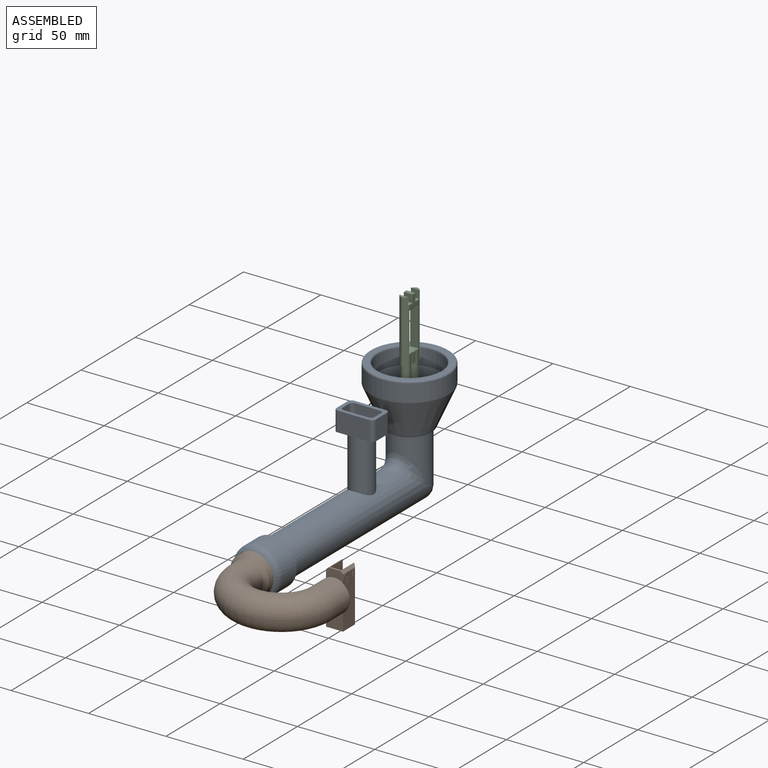
[diagram: assembled view]
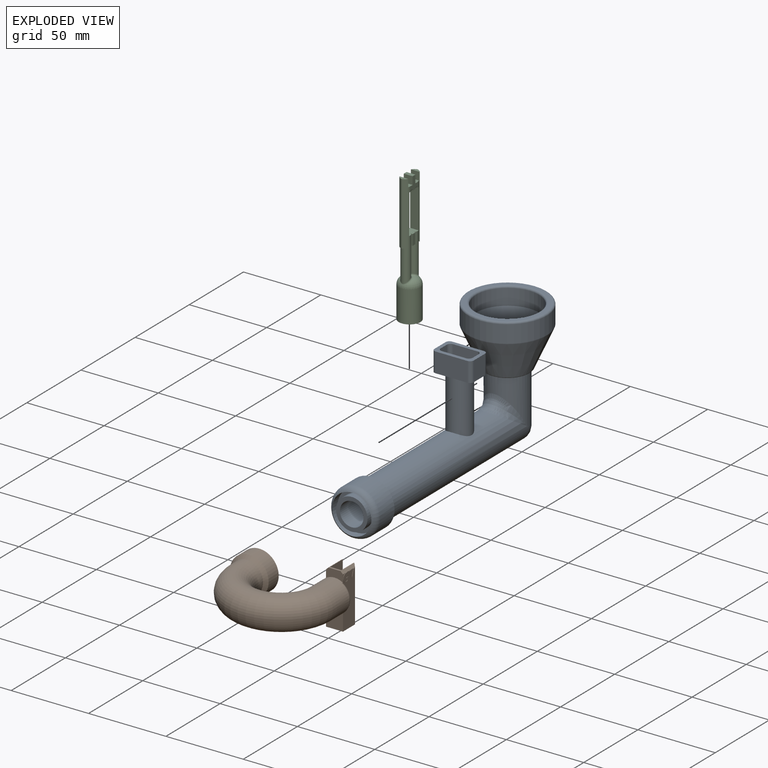
[diagram: exploded view]
GUIDED TOUR — MATED ASSEMBLY (Onshape document 294cb8a4e7f93ac775abc34d, AutoMate assembly 294cb8a4e7f93ac775abc34d_49859cf4d4e30ea3f9144161_02665d1db460f2ab4e674225_default)

This assembly has 3 components, labeled P0..P2 below (a component is one placed occurrence of a part; the same part can appear more than once), held together by 2 mates. A mate is a constraint between two components; its type names the relative motion it leaves free:
  CYLINDRICAL — leaves both rotation about and translation along the listed axis free,
  PIN_SLOT — leaves rotation about the listed axis plus translation along a slot free.
Axis/direction vectors are unit vectors and 'through' points are millimeter coordinates, both in the assembly's world frame.

MATES
  1. CYLINDRICAL "Cylindrical 1": P0 <-> P1, axis (0.000, -1.000, 0.000) through (-49.79, 107.34, 153.66) mm
  2. PIN_SLOT "Pin slot 1": P0 <-> P2, axis (0.000, 0.000, -1.000) through (-49.79, 246.02, 188.46) mm

ASSEMBLY ORDER
  1. P1 — the base component [order verified]
  2. P0 [order verified]
  3. P2 [order verified]
(P0 verified with a relaxed clearance tolerance: the source model stores slight part interference there.)
Order-tag legend:
  [order verified] — this step's position reverses a verified removal order: the component was checked to insert without passing through the ones already placed.

Of the 3 components, 1 carries the full construction recipe — the FeatureScript program that regenerates the part's solid from scratch; the rest are supplied as boundary geometry only.
Each toured component is shown spotlighted twice — in the assembled view, then in the exploded view, where a leader line traces a displaced component back to its assembled socket (saturated green if recipe-attached, orange if geometry-only; every other component desaturated gray) — followed by its recipe or geometry summary and the mates that hold it.
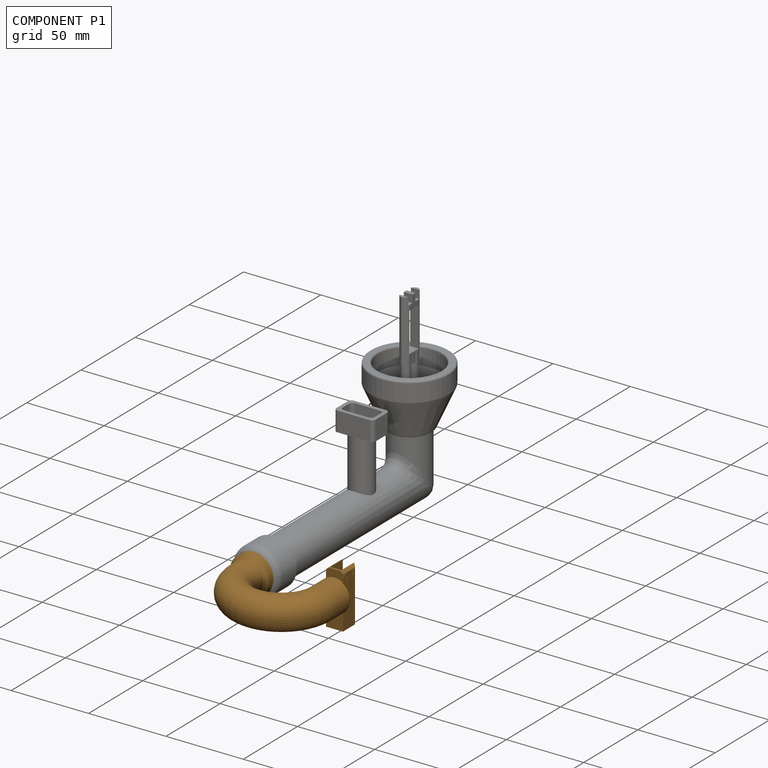
[diagram: component P1 — assembled]
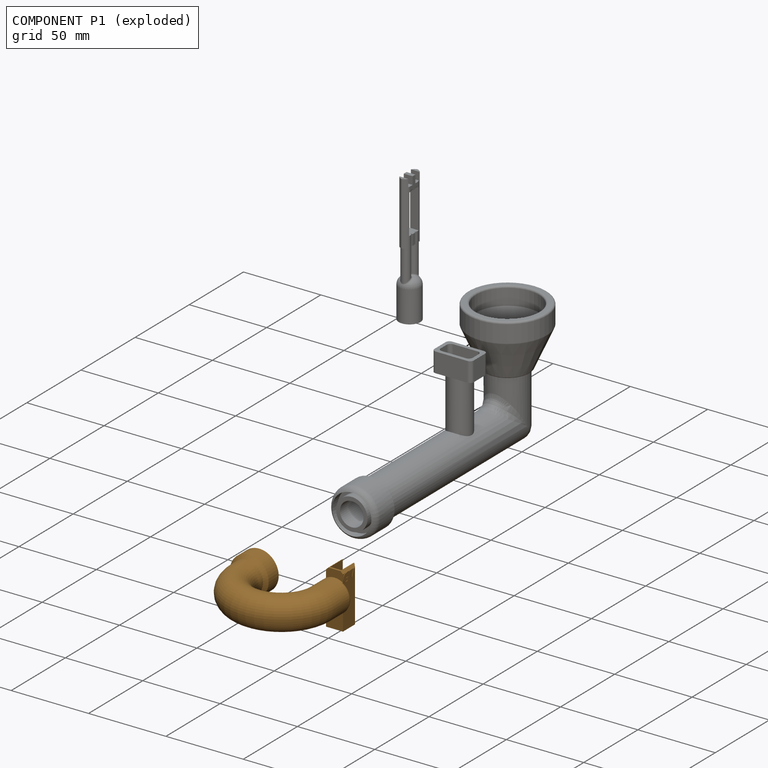
[diagram: component P1 — exploded]
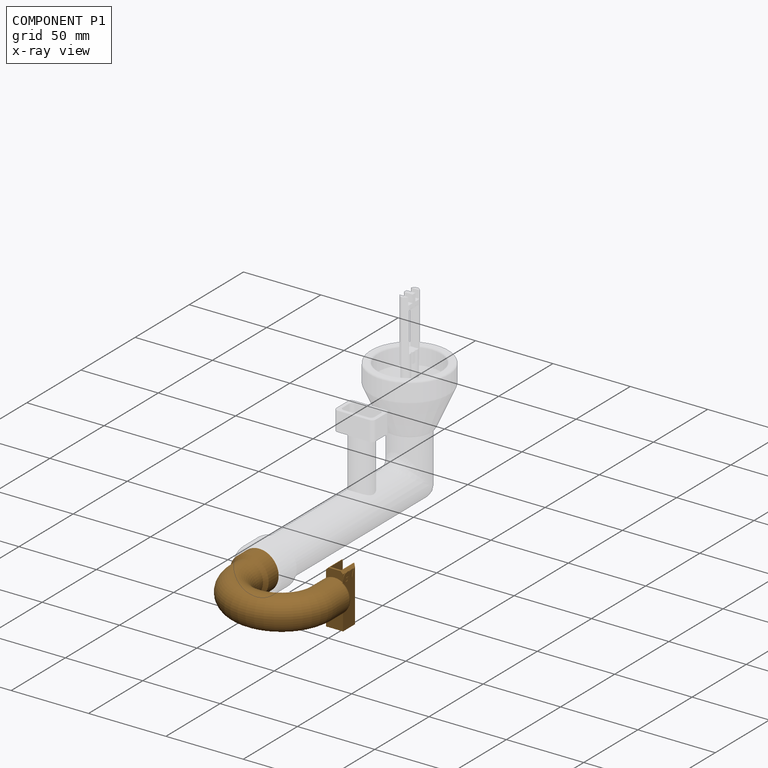
[diagram: component P1 — x-ray view]
COMPONENT P1 — geometry summary (no construction recipe available for this part):
  bounding box: 77.7 x 64.3 x 35.1 mm
  B-rep topology: 1 solid, 126 faces, 640 edges
  volume: 20211 mm^3 (12% of its bounding box)
Held by: CYLINDRICAL mate "Cylindrical 1" to P0.
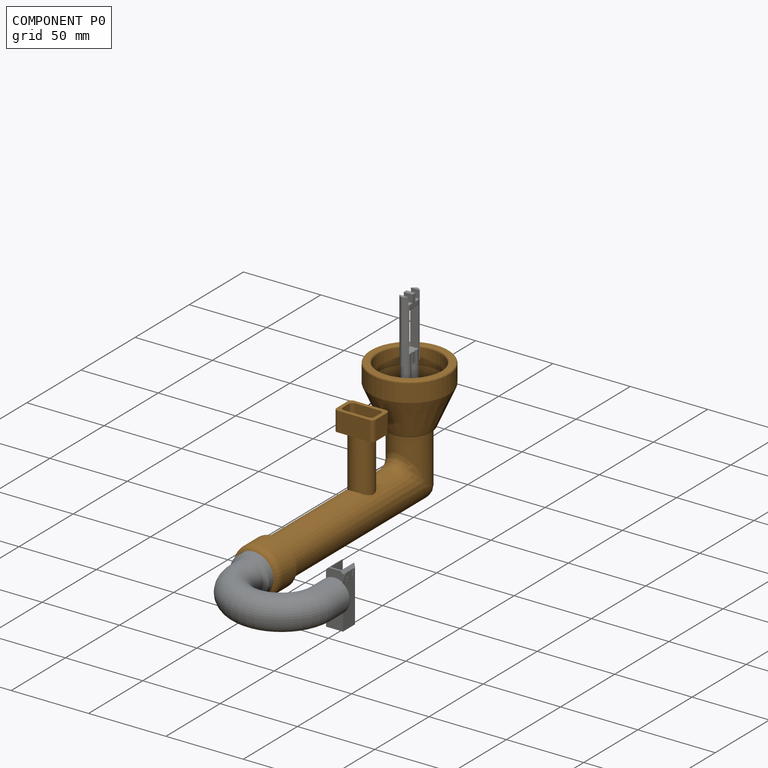
[diagram: component P0 — assembled]
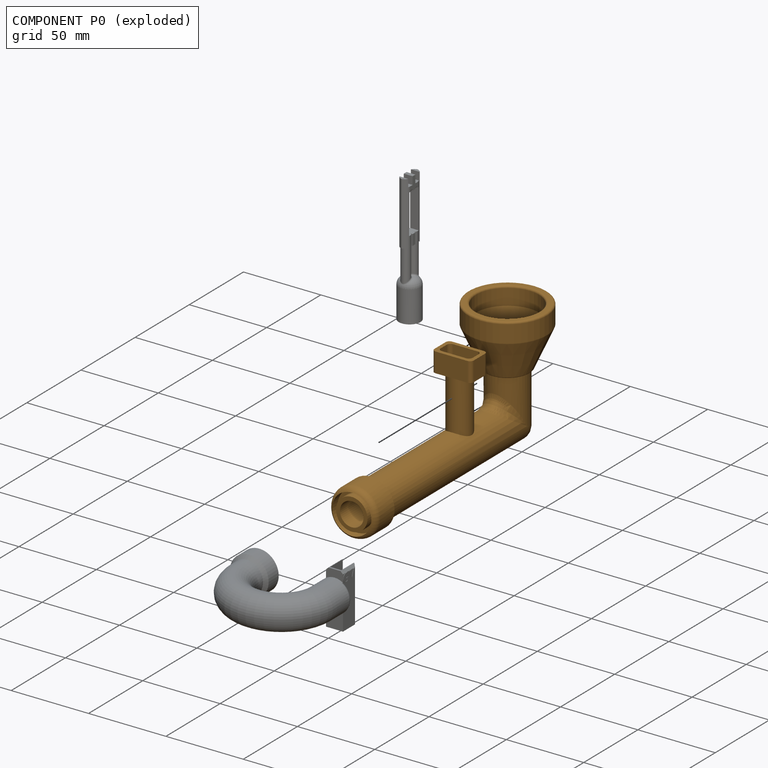
[diagram: component P0 — exploded]
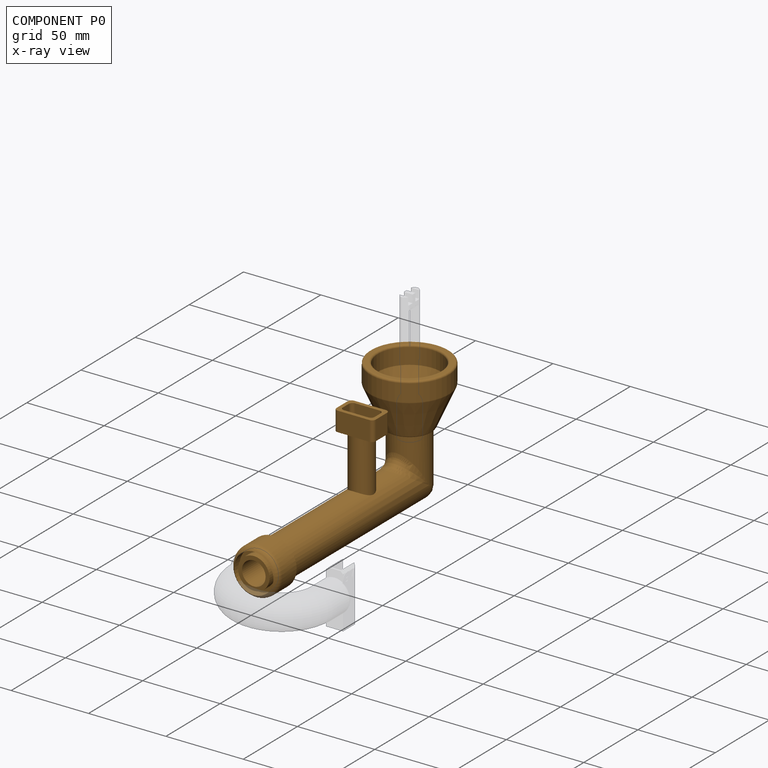
[diagram: component P0 — x-ray view]
COMPONENT P0 — geometry summary (no construction recipe available for this part):
  bounding box: 172.7 x 86.4 x 55.7 mm
  B-rep topology: 1 solid, 59 faces, 276 edges
  volume: 89300 mm^3 (11% of its bounding box)
  symmetry: mirror-symmetric across its x mid-plane
Held by: CYLINDRICAL mate "Cylindrical 1" to P1; PIN_SLOT mate "Pin slot 1" to P2.
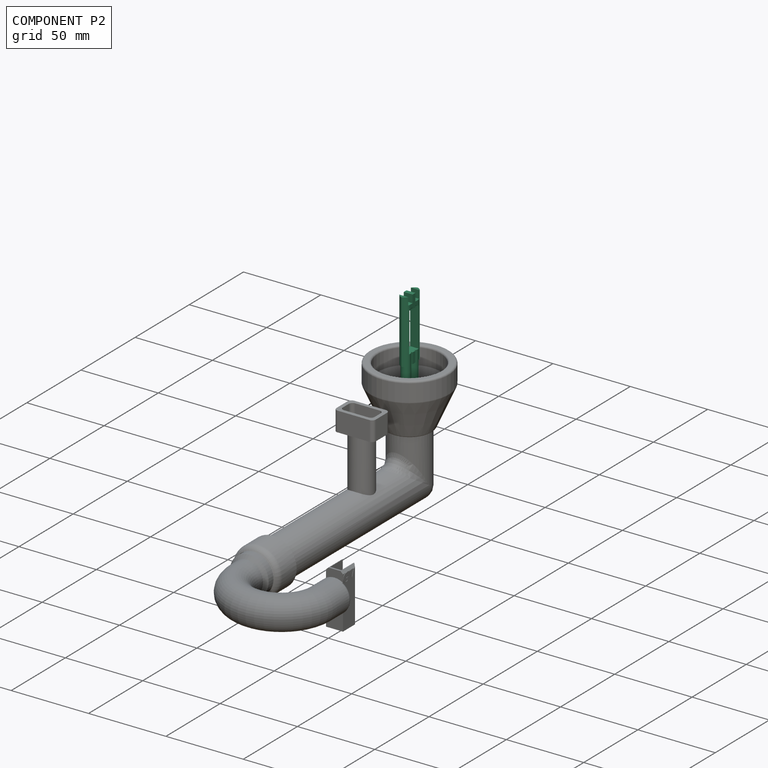
[diagram: component P2 — assembled]
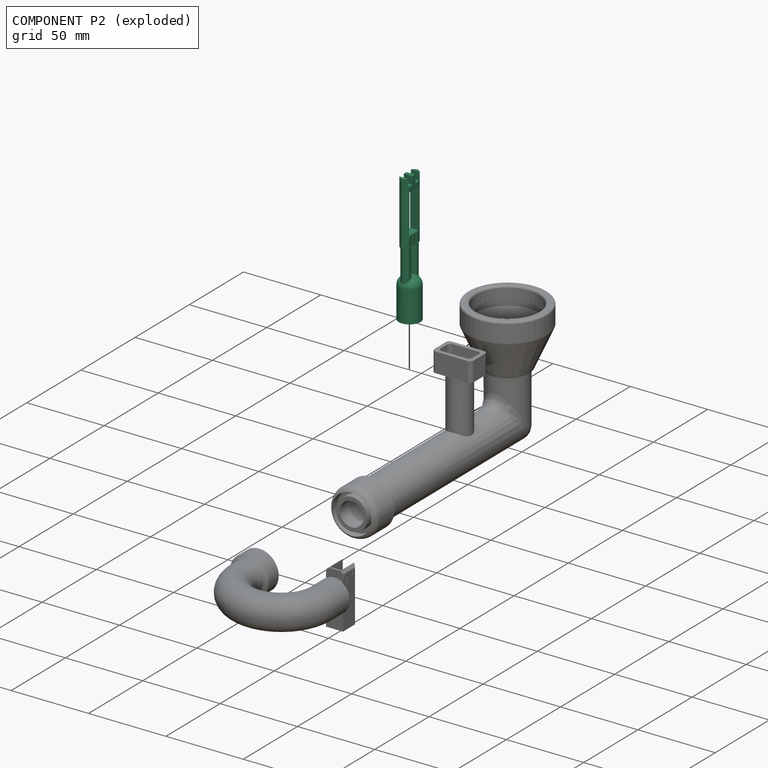
[diagram: component P2 — exploded]
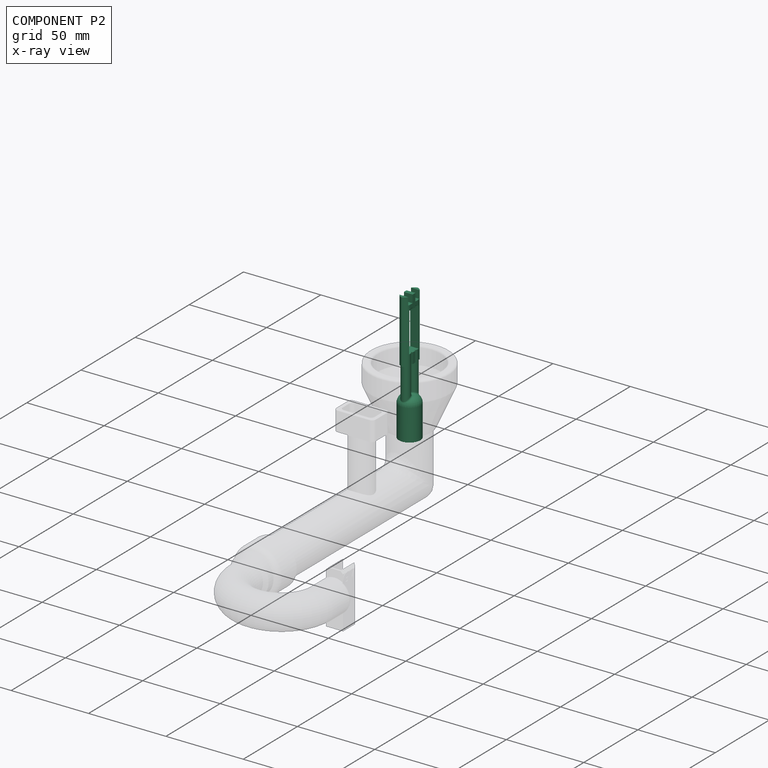
[diagram: component P2 — x-ray view]
COMPONENT P2 — recipe-attached (CADFS 00290997, mesh-verified: the recipe's output STEP matches this component's geometry to below the mesh-comparison resolution (tessellation chordal tolerance ~0.13 mm)).
Held by: PIN_SLOT mate "Pin slot 1" to P0.
Construction recipe (FeatureScript — the CAD program that rebuilds this solid; sketch coordinates are in the units given by the * unit suffixes, e.g. mm):

FeatureScript 1511;
import(path : "onshape/std/geometry.fs", version : "1511.0");
import(path : "onshape/std/common.fs", version : "1511.0");
const mm = millimeter;
const VERTEX = EntityType.VERTEX;
const EDGE = EntityType.EDGE;
const FACE = EntityType.FACE;
const BODY = EntityType.BODY;
function v(x, y){return vector(x, y);}
function OD(order){return orderDisambiguation(order);}
function OSD(set){return originalSetDisambiguation(set);}
function TD(topology){return topologyDisambiguation(topology);}
function TDD(query){return trueDependencyDisambiguation(query);}
function sQuery(a, b, c) {return sketchEntityQuery(a, b, c);}

annotation { "Feature Type Name" : "Feature", "Feature Type Description" : "" }
export const myFeature = defineFeature(function(context is Context, id is Id, definition is map)
    precondition{}
    {
        {
            var Q0;
            Q0=qCreatedBy(makeId("Front.planeOp"),FACE);
            var sketch = newSketch(context, id + "F0", { "sketchPlane" : qUnion([Q0])});
            skCircle(sketch, "E0", {"center": v(0, 0) * mm, "radius": 6.99 * mm});
            skSolve(sketch);
        }
        {
            var Q0;
            Q0=qCreatedBy(makeId("Right.planeOp"),FACE);
            var sketch = newSketch(context, id + "F1", { "sketchPlane" : qUnion([Q0])});
            skLineSegment(sketch, "E1", {"start": v(0, 0) * mm, "end": v(-25.4, 0) * mm});
            skSolve(sketch);
        }
        {
            var Q0;
            Q0 = qSketchRegion(id + "F0", true);
            var Q1;
            Q1 = qConstructionFilter(qBodyType(qCreatedBy(id + "F1" ,EDGE), BodyType.WIRE), ConstructionObject.NO);
            sweep(context, id + "F2", {"profiles" : qUnion([Q0]), "path" : qUnion([Q1])});
        }
        {
            var Q0;
            Q0=makeQuery(id+"F2.opSweep","CAP_FACE",FACE,{"disambiguationData":[OSD([sQuery(id+"F0.wireOp",EDGE,"E0"),sQuery(id+"F1.wireOp",VERTEX,"E1.end")])],"isStart":false});
            var sketch = newSketch(context, id + "F3", { "sketchPlane" : qUnion([Q0])});
            skLineSegment(sketch, "E2", {"start": v(0, 0) * mm, "end": v(0, 6.99) * mm});
            skLineSegment(sketch, "E3", {"start": v(0, -6.99) * mm, "end": v(0, 0) * mm});
            skCircle(sketch, "E4", {"center": v(0, 3.5) * mm, "radius": 2.86 * mm});
            skCircle(sketch, "E5", {"center": v(0, -3.5) * mm, "radius": 2.86 * mm});
            skSolve(sketch);
        }
        {
            var Q0;
            Q0=qCreatedBy(makeId("Right.planeOp"),FACE);
            var sketch = newSketch(context, id + "F4", { "sketchPlane" : qUnion([Q0])});
            skSolve(sketch);
        }
        {
            var Q0;
            Q0 = qSketchRegion(id + "F4", true);
            var Q1;
            {var subQ0=sQuery(id+"F3.wireOp",EDGE,"E4");var subQ1=sQuery(id+"F3.wireOp",EDGE,"E2");var subQ2=makeQuery(id+"F3.imprint","INTERSECT",VERTEX,{"disambiguationData":[OD(0.0)],"derivedFrom":[subQ1,subQ0]});Q1=makeQuery(id+"F3.imprint","IMPRINT",FACE,{"disambiguationData":[TD([[makeQuery(id+"F3.imprint","IMPRINT",EDGE,{"disambiguationData":[TD([[subQ2,-1.0]])],"derivedFrom":subQ1}),1.0]])]});}
            var Q2;
            {var subQ0=sQuery(id+"F3.wireOp",EDGE,"E4");var subQ1=sQuery(id+"F3.wireOp",EDGE,"E2");var subQ2=makeQuery(id+"F3.imprint","INTERSECT",VERTEX,{"disambiguationData":[OD(0.0)],"derivedFrom":[subQ1,subQ0]});Q2=makeQuery(id+"F3.imprint","IMPRINT",FACE,{"disambiguationData":[TD([[makeQuery(id+"F3.imprint","IMPRINT",EDGE,{"disambiguationData":[TD([[subQ2,-1.0]])],"derivedFrom":subQ1}),-1.0]])]});}
            var Q3;
            {var subQ0=sQuery(id+"F3.wireOp",EDGE,"E5");var subQ1=sQuery(id+"F3.wireOp",EDGE,"E3");var subQ2=makeQuery(id+"F3.imprint","INTERSECT",VERTEX,{"disambiguationData":[OD(0.0)],"derivedFrom":[subQ1,subQ0]});Q3=makeQuery(id+"F3.imprint","IMPRINT",FACE,{"disambiguationData":[TD([[makeQuery(id+"F3.imprint","IMPRINT",EDGE,{"disambiguationData":[TD([[subQ2,-1.0]])],"derivedFrom":subQ1}),1.0]])]});}
            var Q4;
            {var subQ0=sQuery(id+"F3.wireOp",EDGE,"E5");var subQ1=sQuery(id+"F3.wireOp",EDGE,"E3");var subQ2=makeQuery(id+"F3.imprint","INTERSECT",VERTEX,{"disambiguationData":[OD(0.0)],"derivedFrom":[subQ1,subQ0]});Q4=makeQuery(id+"F3.imprint","IMPRINT",FACE,{"disambiguationData":[TD([[makeQuery(id+"F3.imprint","IMPRINT",EDGE,{"disambiguationData":[TD([[subQ2,-1.0]])],"derivedFrom":subQ1}),-1.0]])]});}
            extrude(context, id + "F5", {"entities" : qUnion([Q0, Q1, Q2, Q3, Q4]), "operationType" : NewBodyOperationType.ADD, "depth" : 50.8 * mm});
        }
        {
            var Q0;
            Q0=makeQuery(id+"F5.opExtrude","CAP_FACE",FACE,{"disambiguationData":[OSD([sQuery(id+"F3.wireOp",EDGE,"E4")])],"isStart":false});
            var sketch = newSketch(context, id + "F6", { "sketchPlane" : qUnion([Q0])});
            skLineSegment(sketch, "E6.bottom", {"start": v(-2.84, 3.15) * mm, "end": v(2.88, 3.15) * mm});
            skLineSegment(sketch, "E6.top", {"start": v(-2.84, -3.2) * mm, "end": v(2.88, -3.2) * mm});
            skLineSegment(sketch, "E6.left", {"start": v(-2.84, 3.15) * mm, "end": v(-2.84, -3.2) * mm});
            skLineSegment(sketch, "E6.right", {"start": v(2.88, 3.15) * mm, "end": v(2.88, -3.2) * mm});
            skSolve(sketch);
        }
        {
            var Q0;
            Q0=makeQuery(id+"F5.opExtrude","CAP_FACE",FACE,{"disambiguationData":[OSD([sQuery(id+"F3.wireOp",EDGE,"E5")])],"isStart":false});
            var Q1;
            {var subQ0=sQuery(id+"F6.wireOp",EDGE,"E6.bottom");var subQ1=makeQuery(id+"F5.opExtrude","CAP_EDGE",EDGE,{"disambiguationData":[OSD([sQuery(id+"F3.wireOp",EDGE,"E4")])],"isStart":false});var subQ3=makeQuery(id+"F6.imprint","INTERSECT",VERTEX,{"derivedFrom":[subQ1,subQ0]});Q1=makeQuery(id+"F6.imprint","IMPRINT",FACE,{"disambiguationData":[TD([[makeQuery(id+"F6.imprint","IMPRINT",EDGE,{"disambiguationData":[TD([[subQ3,1.0]])],"derivedFrom":subQ0}),-1.0]])]});}
            var Q2;
            Q2=makeQuery(id+"F6.imprint","IMPRINT",FACE,{"disambiguationData":[TD([[makeQuery(id+"F6.imprint","IMPRINT",EDGE,{"derivedFrom":sQuery(id+"F6.wireOp",EDGE,"E6.top")}),1.0]])]});
            var Q3;
            {var subQ0=sQuery(id+"F6.wireOp",EDGE,"E6.bottom");var subQ1=makeQuery(id+"F5.opExtrude","CAP_EDGE",EDGE,{"disambiguationData":[OSD([sQuery(id+"F3.wireOp",EDGE,"E4")])],"isStart":false});var subQ3=makeQuery(id+"F6.imprint","INTERSECT",VERTEX,{"derivedFrom":[subQ1,subQ0]});Q3=makeQuery(id+"F6.imprint","IMPRINT",FACE,{"disambiguationData":[TD([[makeQuery(id+"F6.imprint","IMPRINT",EDGE,{"disambiguationData":[TD([[subQ3,1.0]])],"derivedFrom":subQ0}),1.0]])]});}
            extrude(context, id + "F7", {"entities" : qUnion([Q0, Q1, Q2, Q3]), "operationType" : NewBodyOperationType.ADD, "depth" : 8.38 * mm});
        }
        {
            var Q0;
            Q0=makeQuery(id+"F7.boolean.opBoolean","MERGE",FACE,{"derivedFrom":[makeQuery(id+"F7.opExtrude","CAP_FACE",FACE,{"disambiguationData":[OSD([sQuery(id+"F3.wireOp",EDGE,"E5")])],"isStart":false}),makeQuery(id+"F7.opExtrude","CAP_FACE",FACE,{"disambiguationData":[OSD([sQuery(id+"F3.wireOp",EDGE,"E4"),sQuery(id+"F6.wireOp",EDGE,"E6.bottom"),sQuery(id+"F6.wireOp",EDGE,"E6.top"),sQuery(id+"F6.wireOp",EDGE,"E6.left"),sQuery(id+"F6.wireOp",EDGE,"E6.right")])],"isStart":false})]});
            var sketch = newSketch(context, id + "F8", { "sketchPlane" : qUnion([Q0])});
            skLineSegment(sketch, "E7", {"start": v(-2.84, 0) * mm, "end": v(-2.84, -1.27) * mm});
            skLineSegment(sketch, "E8", {"start": v(-2.84, -1.27) * mm, "end": v(2.88, -1.27) * mm});
            skLineSegment(sketch, "E9", {"start": v(2.88, -1.27) * mm, "end": v(2.88, -5.3) * mm});
            skLineSegment(sketch, "E10", {"start": v(2.88, -5.3) * mm, "end": v(-2.84, -5.3) * mm});
            skLineSegment(sketch, "E11", {"start": v(-2.84, -1.27) * mm, "end": v(-2.84, -5.3) * mm});
            skLineSegment(sketch, "E12", {"start": v(-2.84, 0) * mm, "end": v(-2.84, 1.27) * mm});
            skLineSegment(sketch, "E13", {"start": v(-2.84, 1.27) * mm, "end": v(2.88, 1.27) * mm});
            skLineSegment(sketch, "E14", {"start": v(2.88, 1.27) * mm, "end": v(2.88, 5.3) * mm});
            skLineSegment(sketch, "E15", {"start": v(2.88, 5.3) * mm, "end": v(-2.84, 5.3) * mm});
            skLineSegment(sketch, "E16", {"start": v(-2.84, 1.27) * mm, "end": v(-2.84, 5.3) * mm});
            skSolve(sketch);
        }
        {
            var Q0;
            Q0 = qSketchRegion(id + "F8", true);
            extrude(context, id + "F9", {"entities" : qUnion([Q0]), "operationType" : NewBodyOperationType.REMOVE, "oppositeDirection" : true, "depth" : 5.08 * mm});
        }
        {
            var Q0;
            Q0=makeQuery(id+"F7.opExtrude","SWEPT_FACE",FACE,{"disambiguationData":[OSD([sQuery(id+"F6.wireOp",EDGE,"E6.left")])]});
            var sketch = newSketch(context, id + "F10", { "sketchPlane" : qUnion([Q0])});
            skLineSegment(sketch, "E17", {"start": v(76.2, 0) * mm, "end": v(76.2, 3.15) * mm});
            skLineSegment(sketch, "E18", {"start": v(50.8, 3.15) * mm, "end": v(50.8, -3.15) * mm});
            skLineSegment(sketch, "E19", {"start": v(76.2, -3.15) * mm, "end": v(76.2, 0) * mm});
            skLineSegment(sketch, "E20.0", {"start": v(76.2, 4.42) * mm, "end": v(50.8, 4.42) * mm});
            skLineSegment(sketch, "E21.0", {"start": v(50.8, -4.42) * mm, "end": v(76.2, -4.42) * mm});
            skLineSegment(sketch, "E22", {"start": v(50.8, -4.42) * mm, "end": v(50.8, -3.15) * mm});
            skLineSegment(sketch, "E23", {"start": v(50.8, 3.15) * mm, "end": v(50.8, 4.42) * mm});
            skLineSegment(sketch, "E24", {"start": v(76.2, 3.15) * mm, "end": v(76.2, 4.42) * mm});
            skLineSegment(sketch, "E25", {"start": v(76.2, -4.42) * mm, "end": v(76.2, -3.15) * mm});
            skSolve(sketch);
        }
        {
            var Q0;
            Q0=makeQuery(id+"F2.opSweep","CAP_EDGE",EDGE,{"disambiguationData":[OSD([sQuery(id+"F0.wireOp",EDGE,"E0"),sQuery(id+"F1.wireOp",VERTEX,"E1.end")])],"isStart":false});
            fillet(context, id + "F11", {"entities" : qUnion([Q0]), "radius" : 5.08 * mm, "tangentPropagation" : true, "allowEdgeOverflow" : false});
        }
        {
            var Q0;
            {var subQ0=sQuery(id+"F3.wireOp",EDGE,"E4");Q0=makeQuery(id+"F11.opFillet","BLEND_EDGE",EDGE,{"blendedFrom":[makeQuery(id+"F2.opSweep","CAP_EDGE",EDGE,{"disambiguationData":[OSD([sQuery(id+"F0.wireOp",EDGE,"E0"),sQuery(id+"F1.wireOp",VERTEX,"E1.end")])],"isStart":false}),makeQuery(id+"F7.boolean.opBoolean","MERGE",FACE,{"derivedFrom":[makeQuery(id+"F5.opExtrude","SWEPT_FACE",FACE,{"disambiguationData":[OSD([subQ0])]}),makeQuery(id+"F7.opExtrude","SWEPT_FACE",FACE,{"disambiguationData":[OSD([subQ0])]})]})],"blendedInto":[makeQuery(id+"F7.boolean.opBoolean","MERGE",FACE,{"derivedFrom":[makeQuery(id+"F5.opExtrude","SWEPT_FACE",FACE,{"disambiguationData":[OSD([subQ0])]}),makeQuery(id+"F7.opExtrude","SWEPT_FACE",FACE,{"disambiguationData":[OSD([subQ0])]})]})]});}
            var Q1;
            {var subQ0=sQuery(id+"F3.wireOp",EDGE,"E5");Q1=makeQuery(id+"F11.opFillet","BLEND_EDGE",EDGE,{"blendedFrom":[makeQuery(id+"F2.opSweep","CAP_EDGE",EDGE,{"disambiguationData":[OSD([sQuery(id+"F0.wireOp",EDGE,"E0"),sQuery(id+"F1.wireOp",VERTEX,"E1.end")])],"isStart":false}),makeQuery(id+"F7.boolean.opBoolean","MERGE",FACE,{"derivedFrom":[makeQuery(id+"F5.opExtrude","SWEPT_FACE",FACE,{"disambiguationData":[OSD([subQ0])]}),makeQuery(id+"F7.opExtrude","SWEPT_FACE",FACE,{"disambiguationData":[OSD([subQ0])]})]})],"blendedInto":[makeQuery(id+"F7.boolean.opBoolean","MERGE",FACE,{"derivedFrom":[makeQuery(id+"F5.opExtrude","SWEPT_FACE",FACE,{"disambiguationData":[OSD([subQ0])]}),makeQuery(id+"F7.opExtrude","SWEPT_FACE",FACE,{"disambiguationData":[OSD([subQ0])]})]})]});}
            var Q2;
            {var subQ0=sQuery(id+"F3.wireOp",EDGE,"E5");Q2=makeQuery(id+"F18.boolean.opBoolean","INTERSECT",EDGE,{"derivedFrom":[makeQuery(id+"F7.boolean.opBoolean","MERGE",FACE,{"derivedFrom":[makeQuery(id+"F5.opExtrude","SWEPT_FACE",FACE,{"disambiguationData":[OSD([subQ0])]}),makeQuery(id+"F7.opExtrude","SWEPT_FACE",FACE,{"disambiguationData":[OSD([subQ0])]})]}),makeQuery(id+"F18.opExtrude","SWEPT_FACE",FACE,{"disambiguationData":[OSD([sQuery(id+"F10.wireOp",EDGE,"E18")])]})]});}
            var Q3;
            {var subQ0=sQuery(id+"F3.wireOp",EDGE,"E4");Q3=makeQuery(id+"F18.boolean.opBoolean","INTERSECT",EDGE,{"derivedFrom":[makeQuery(id+"F7.boolean.opBoolean","MERGE",FACE,{"derivedFrom":[makeQuery(id+"F5.opExtrude","SWEPT_FACE",FACE,{"disambiguationData":[OSD([subQ0])]}),makeQuery(id+"F7.opExtrude","SWEPT_FACE",FACE,{"disambiguationData":[OSD([subQ0])]})]}),makeQuery(id+"F18.opExtrude","SWEPT_FACE",FACE,{"disambiguationData":[OSD([sQuery(id+"F10.wireOp",EDGE,"E18")])]})]});}
            var Q4;
            Q4=makeQuery(id+"F7.opExtrude","CAP_EDGE",EDGE,{"disambiguationData":[OSD([sQuery(id+"F6.wireOp",EDGE,"E6.left")])],"isStart":true});
            var Q5;
            Q5=makeQuery(id+"F7.opExtrude","CAP_EDGE",EDGE,{"disambiguationData":[OSD([sQuery(id+"F6.wireOp",EDGE,"E6.right")])],"isStart":true});
            fillet(context, id + "F12", {"entities" : qUnion([Q0, Q1, Q2, Q3, Q4, Q5]), "radius" : 1.02 * mm, "tangentPropagation" : true, "allowEdgeOverflow" : false});
        }
        {
            var Q0;
            Q0=qCreatedBy(makeId("Right.planeOp"),FACE);
            var sketch = newSketch(context, id + "F13", { "sketchPlane" : qUnion([Q0])});
            skPoint(sketch, "E26.0", {"position": v(-84.58, 3.83) * mm});
            skLineSegment(sketch, "E27.bottom", {"start": v(-84.67, 3.09) * mm, "end": v(-79.5, 3.09) * mm});
            skLineSegment(sketch, "E27.top", {"start": v(-84.67, 3.84) * mm, "end": v(-79.5, 3.84) * mm});
            skLineSegment(sketch, "E27.left", {"start": v(-84.67, 3.09) * mm, "end": v(-84.67, 3.84) * mm});
            skLineSegment(sketch, "E27.right", {"start": v(-79.5, 3.09) * mm, "end": v(-79.5, 3.84) * mm});
            skLineSegment(sketch, "E28.bottom", {"start": v(-84.65, -4.05) * mm, "end": v(-79.5, -4.05) * mm});
            skLineSegment(sketch, "E28.top", {"start": v(-84.65, -2.95) * mm, "end": v(-79.5, -2.95) * mm});
            skLineSegment(sketch, "E28.left", {"start": v(-84.65, -4.05) * mm, "end": v(-84.65, -2.95) * mm});
            skLineSegment(sketch, "E28.right", {"start": v(-79.5, -4.05) * mm, "end": v(-79.5, -2.95) * mm});
            skSolve(sketch);
        }
        {
            var Q0;
            Q0 = qSketchRegion(id + "F13", true);
            extrude(context, id + "F14", {"entities" : qUnion([Q0]), "operationType" : NewBodyOperationType.REMOVE, "oppositeDirection" : true, "depth" : 25.4 * mm});
        }
        {
            var Q0;
            {var subQ0=sQuery(id+"F6.wireOp",EDGE,"E6.left");var subQ1=sQuery(id+"F6.wireOp",EDGE,"E6.right");Q0=makeQuery(id+"F9.boolean.opBoolean","SPLIT",FACE,{"disambiguationData":[TD([makeQuery(id+"F7.opExtrude","SWEPT_FACE",FACE,{"disambiguationData":[OSD([subQ0])]})])],"derivedFrom":makeQuery(id+"F7.boolean.opBoolean","MERGE",FACE,{"derivedFrom":[makeQuery(id+"F7.opExtrude","CAP_FACE",FACE,{"disambiguationData":[OSD([sQuery(id+"F3.wireOp",EDGE,"E5")])],"isStart":false}),makeQuery(id+"F7.opExtrude","CAP_FACE",FACE,{"disambiguationData":[OSD([sQuery(id+"F3.wireOp",EDGE,"E4"),sQuery(id+"F6.wireOp",EDGE,"E6.bottom"),sQuery(id+"F6.wireOp",EDGE,"E6.top"),subQ0,subQ1])],"isStart":false})]})});}
            var sketch = newSketch(context, id + "F15", { "sketchPlane" : qUnion([Q0])});
            skLineSegment(sketch, "E29", {"start": v(-2.84, 0) * mm, "end": v(-2.84, 7.62) * mm});
            skLineSegment(sketch, "E30", {"start": v(-2.84, 7.62) * mm, "end": v(2.88, 7.62) * mm});
            skLineSegment(sketch, "E31", {"start": v(2.88, 7.62) * mm, "end": v(2.88, 0) * mm});
            skLineSegment(sketch, "E32", {"start": v(-2.84, 5.32) * mm, "end": v(2.88, 5.32) * mm});
            skLineSegment(sketch, "E33", {"start": v(-2.84, 0) * mm, "end": v(-2.84, -7.62) * mm});
            skLineSegment(sketch, "E34", {"start": v(-2.84, -7.62) * mm, "end": v(2.88, -7.62) * mm});
            skLineSegment(sketch, "E35", {"start": v(2.88, -7.62) * mm, "end": v(2.88, 0) * mm});
            skLineSegment(sketch, "E36", {"start": v(-2.84, -5.36) * mm, "end": v(2.88, -5.36) * mm});
            skSolve(sketch);
        }
        {
            var Q0;
            {var subQ0=sQuery(id+"F15.wireOp",EDGE,"E34");Q0=makeQuery(id+"F15.imprint","IMPRINT",FACE,{"disambiguationData":[TD([[makeQuery(id+"F15.imprint","IMPRINT",EDGE,{"derivedFrom":subQ0}),1.0]])]});}
            var Q1;
            {var subQ0=makeQuery(id+"F9.boolean.opBoolean","COPY",EDGE,{"derivedFrom":makeQuery(id+"F9.opExtrude","CAP_EDGE",EDGE,{"disambiguationData":[OSD([sQuery(id+"F8.wireOp",EDGE,"E8")])],"isStart":true})});Q1=makeQuery(id+"F15.imprint","IMPRINT",FACE,{"disambiguationData":[TD([[makeQuery(id+"F15.imprint","IMPRINT",EDGE,{"derivedFrom":subQ0}),1.0]])]});}
            var Q2;
            {var subQ0=sQuery(id+"F15.wireOp",EDGE,"E30");Q2=makeQuery(id+"F15.imprint","IMPRINT",FACE,{"disambiguationData":[TD([[makeQuery(id+"F15.imprint","IMPRINT",EDGE,{"derivedFrom":subQ0}),-1.0]])]});}
            extrude(context, id + "F16", {"entities" : qUnion([Q0, Q1, Q2]), "operationType" : NewBodyOperationType.ADD, "oppositeDirection" : true, "depth" : 40.64 * mm});
        }
        {
            var Q0;
            Q0=makeQuery(id+"F16.opExtrude","SWEPT_EDGE",EDGE,{"disambiguationData":[OSD([sQuery(id+"F15.wireOp",EDGE,"E30"),sQuery(id+"F15.wireOp",EDGE,"E31")])]});
            var Q1;
            Q1=makeQuery(id+"F16.opExtrude","SWEPT_EDGE",EDGE,{"disambiguationData":[OSD([sQuery(id+"F15.wireOp",EDGE,"E29"),sQuery(id+"F15.wireOp",EDGE,"E30")])]});
            var Q2;
            Q2=makeQuery(id+"F16.opExtrude","SWEPT_EDGE",EDGE,{"disambiguationData":[OSD([sQuery(id+"F15.wireOp",EDGE,"E33"),sQuery(id+"F15.wireOp",EDGE,"E34")])]});
            var Q3;
            Q3=makeQuery(id+"F16.opExtrude","SWEPT_EDGE",EDGE,{"disambiguationData":[OSD([sQuery(id+"F15.wireOp",EDGE,"E34"),sQuery(id+"F15.wireOp",EDGE,"E35")])]});
            fillet(context, id + "F17", {"entities" : qUnion([Q0, Q1, Q2, Q3]), "radius" : 5.08 * mm, "tangentPropagation" : true, "allowEdgeOverflow" : false});
        }
        {
            var Q0;
            Q0=makeQuery(id+"F10.imprint","IMPRINT",FACE,{"disambiguationData":[TD([[makeQuery(id+"F10.imprint","IMPRINT",EDGE,{"derivedFrom":sQuery(id+"F10.wireOp",EDGE,"E17")}),-1.0]])]});
            extrude(context, id + "F18", {"entities" : qUnion([Q0]), "operationType" : NewBodyOperationType.REMOVE, "oppositeDirection" : true, "depth" : 25.4 * mm});
        }
    });
PROVENANCE & LICENSES
Assembly (occurrences, transforms, mates, per-part STEP geometry): AutoMate dataset, Zenodo record 7776208, CC0.
Construction recipes: CADFS (HuggingFace VladPyatov/CADFS, CC-BY-4.0, layered over the ABC dataset), FeatureScript reconstruction programs keyed by ABC model id.
Join: ABC meta listings map ABC model id -> Onshape documentId; within a shared document, parts are matched by geometric signature (bounding-box dims + volume at 0.1% relative tolerance, exact B-rep face/solid counts).
Verification: 1 of this assembly's 3 components carries a recipe attachment, and every attachment is mesh-verified: the CADFS STEP and the AutoMate member STEP were compared as meshes in their shared local frame (symmetric sampled-point-to-mesh distance); worst across the 1 attachment: below the mesh-comparison resolution (tessellation chordal tolerance ~0.13 mm) on a 87 mm part.
Renders: orthographic iso camera (az 35 / el 25); the floor grid conveys scale (grid pitch printed in each image; no ruler). In the exploded view each component is displaced by its stored offset vector: the offsets alone carry the explosion direction (mate normal/axis signs are not orientation cues and do not encode it), and separation distances are assigned per mate-chain, not proportionally to assembly-order depth.
